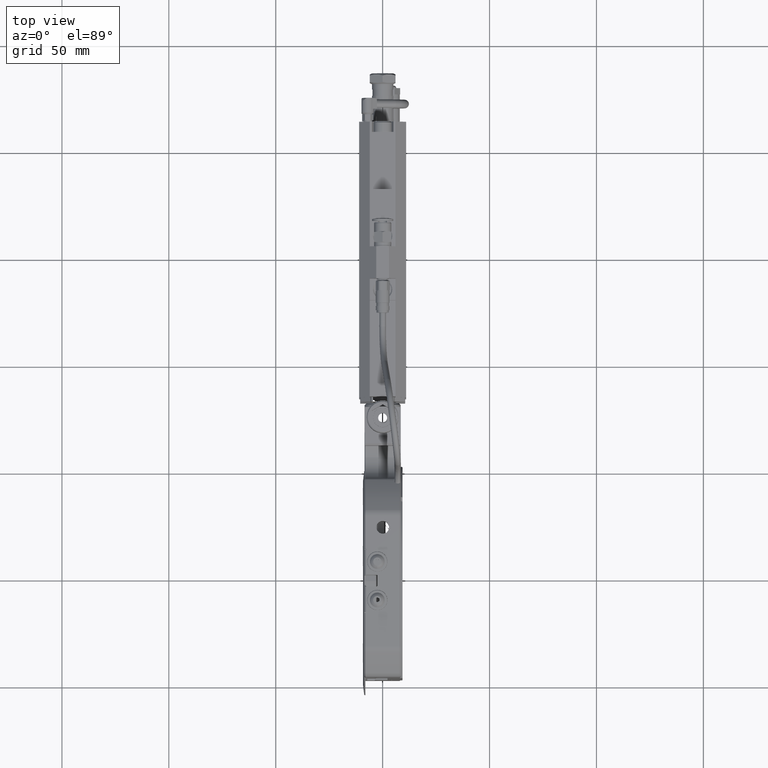
[diagram: clean part render]
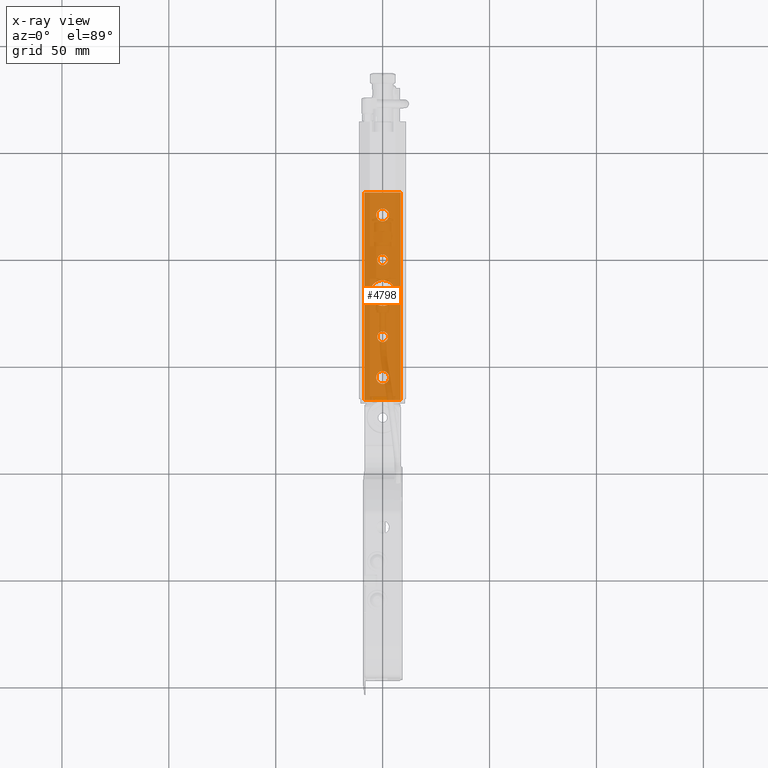
[diagram: x-ray — body ghosted, one internal face saturated and labeled with its STEP entity id]
A machine part, top view, then the same camera in x-ray: the body is ghosted and one INTERNAL B-rep face — a face not visible from any outside direction — is saturated and labeled: STEP entity #4798.
In plain terms, the highlighted planar face has unit normal (-0, -0, 1).
Its self-contained STEP definition (entity closure, byte-faithful):
#26 = DIRECTION ( 'NONE',  ( -1.000000000000000000, 0.000000000000000000, 0.000000000000000000 ) ) ;
#142 = VERTEX_POINT ( 'NONE', #15245 ) ;
#401 = CARTESIAN_POINT ( 'NONE',  ( 2.064920556876012684E-16, 5.887409446773196109, -1.994120026493726883 ) ) ;
#526 = EDGE_CURVE ( 'NONE', #47757, #7745, #19052, .T. ) ;
#538 = LINE ( 'NONE', #44138, #33334 ) ;
#671 = EDGE_CURVE ( 'NONE', #14198, #54429, #52836, .T. ) ;
#748 = EDGE_CURVE ( 'NONE', #44801, #30478, #40035, .T. ) ;
#1084 = CARTESIAN_POINT ( 'NONE',  ( -0.3346456692913382103, 3.308669289292881288, -1.994120026493726883 ) ) ;
#1554 = ORIENTED_EDGE ( 'NONE', *, *, #12971, .F. ) ;
#1956 = ORIENTED_EDGE ( 'NONE', *, *, #45304, .F. ) ;
#2722 = CARTESIAN_POINT ( 'NONE',  ( 0.2362204724409452672, 5.277173226300755360, -1.994120026493726883 ) ) ;
#2843 = FACE_BOUND ( 'NONE', #53444, .T. ) ;
#3637 = DIRECTION ( 'NONE',  ( -1.000000000000000000, 0.000000000000000000, 0.000000000000000000 ) ) ;
#4486 = EDGE_CURVE ( 'NONE', #30478, #44801, #6017, .T. ) ;
#4495 = DIRECTION ( 'NONE',  ( 1.802115992239523963E-16, 5.551115123125782702E-17, -1.000000000000000000 ) ) ;
#4798 = ADVANCED_FACE ( 'NONE', ( #7158, #24536, #41925, #2843, #8314, #18208 ), #39065, .F. ) ;
#5446 = AXIS2_PLACEMENT_3D ( 'NONE', #401, #49623, #6574 ) ;
#6017 = CIRCLE ( 'NONE', #16978, 0.1181102362204720091 ) ;
#6326 = ORIENTED_EDGE ( 'NONE', *, *, #48544, .F. ) ;
#6401 = CIRCLE ( 'NONE', #18261, 0.2362204724409449064 ) ;
#6574 = DIRECTION ( 'NONE',  ( -1.000000000000000000, 0.000000000000000000, 0.000000000000000000 ) ) ;
#7158 = FACE_BOUND ( 'NONE', #21363, .T. ) ;
#7745 = VERTEX_POINT ( 'NONE', #8824 ) ;
#8113 = VERTEX_POINT ( 'NONE', #2722 ) ;
#8314 = FACE_BOUND ( 'NONE', #13631, .T. ) ;
#8471 = CARTESIAN_POINT ( 'NONE',  ( -0.2362204724409445178, 5.277173226300755360, -1.994120026493726883 ) ) ;
#8817 = CARTESIAN_POINT ( 'NONE',  ( 1.729602628002910770E-16, 3.722055116064534541, -1.994120026493726883 ) ) ;
#8824 = CARTESIAN_POINT ( 'NONE',  ( 0.09842519685039399779, 5.887409446773196109, -1.994120026493726883 ) ) ;
#8873 = DIRECTION ( 'NONE',  ( -2.738967610578714190E-17, 1.000000000000000000, -2.775557561562891351E-17 ) ) ;
#9487 = CARTESIAN_POINT ( 'NONE',  ( 0.1181102362204721756, 3.722055116064534541, -1.994120026493726883 ) ) ;
#9615 = VERTEX_POINT ( 'NONE', #1084 ) ;
#10783 = CARTESIAN_POINT ( 'NONE',  ( 3.204394475668172458E-16, 6.714181100316503503, -1.994120026493726883 ) ) ;
#11037 = LINE ( 'NONE', #28126, #31730 ) ;
#11265 = VERTEX_POINT ( 'NONE', #44638 ) ;
#11425 = ORIENTED_EDGE ( 'NONE', *, *, #30439, .F. ) ;
#12653 = DIRECTION ( 'NONE',  ( 1.802115992239523963E-16, 5.551115123125782702E-17, -1.000000000000000000 ) ) ;
#12971 = EDGE_CURVE ( 'NONE', #54429, #14198, #23452, .T. ) ;
#13060 = LINE ( 'NONE', #35557, #51060 ) ;
#13147 = CARTESIAN_POINT ( 'NONE',  ( -0.4330708661417320693, 7.127566927088157200, -1.994120026493726883 ) ) ;
#13631 = EDGE_LOOP ( 'NONE', ( #25825, #41829 ) ) ;
#14198 = VERTEX_POINT ( 'NONE', #38078 ) ;
#15168 = DIRECTION ( 'NONE',  ( 1.802115992239523963E-16, 5.551115123125782702E-17, -1.000000000000000000 ) ) ;
#15245 = CARTESIAN_POINT ( 'NONE',  ( 0.1181102362204723283, 6.714181100316503503, -1.994120026493726883 ) ) ;
#15313 = DIRECTION ( 'NONE',  ( -1.000000000000000000, 5.477935221156371429E-17, -1.201972231527912082E-17 ) ) ;
#15637 = CARTESIAN_POINT ( 'NONE',  ( -0.09842519685039358146, 5.887409446773196109, -1.994120026493726883 ) ) ;
#15728 = CARTESIAN_POINT ( 'NONE',  ( 3.597986277975743569E-16, 5.277173226300755360, -1.994120026493726883 ) ) ;
#16229 = ORIENTED_EDGE ( 'NONE', *, *, #53464, .F. ) ;
#16978 = AXIS2_PLACEMENT_3D ( 'NONE', #8817, #4495, #38742 ) ;
#17683 = CIRCLE ( 'NONE', #53207, 0.1181102362204720091 ) ;
#17805 = AXIS2_PLACEMENT_3D ( 'NONE', #13147, #21361, #51887 ) ;
#18208 = FACE_OUTER_BOUND ( 'NONE', #18321, .T. ) ;
#18261 = AXIS2_PLACEMENT_3D ( 'NONE', #48769, #35146, #21448 ) ;
#18321 = EDGE_LOOP ( 'NONE', ( #16229, #47833, #30816, #20521 ) ) ;
#19052 = CIRCLE ( 'NONE', #5446, 0.09842519685039378963 ) ;
#19195 = VERTEX_POINT ( 'NONE', #8471 ) ;
#20521 = ORIENTED_EDGE ( 'NONE', *, *, #53643, .F. ) ;
#21116 = DIRECTION ( 'NONE',  ( -1.000000000000000000, 0.000000000000000000, 0.000000000000000000 ) ) ;
#21342 = VERTEX_POINT ( 'NONE', #25673 ) ;
#21361 = DIRECTION ( 'NONE',  ( -1.201972231527912390E-17, -5.551115123125783935E-17, 1.000000000000000000 ) ) ;
#21363 = EDGE_LOOP ( 'NONE', ( #11425, #1956 ) ) ;
#21390 = DIRECTION ( 'NONE',  ( -1.000000000000000000, 0.000000000000000000, 0.000000000000000000 ) ) ;
#21448 = DIRECTION ( 'NONE',  ( -1.000000000000000000, 0.000000000000000000, 0.000000000000000000 ) ) ;
#23373 = CIRCLE ( 'NONE', #25169, 0.1181102362204720091 ) ;
#23452 = CIRCLE ( 'NONE', #39862, 0.09842519685039378963 ) ;
#24124 = CARTESIAN_POINT ( 'NONE',  ( 0.09842519685039383126, 4.470086612127526671, -1.994120026493726883 ) ) ;
#24536 = FACE_BOUND ( 'NONE', #26054, .T. ) ;
#24984 = ORIENTED_EDGE ( 'NONE', *, *, #671, .F. ) ;
#25169 = AXIS2_PLACEMENT_3D ( 'NONE', #10783, #32173, #41251 ) ;
#25183 = CARTESIAN_POINT ( 'NONE',  ( -0.1181102362204716760, 6.714181100316503503, -1.994120026493726883 ) ) ;
#25309 = CARTESIAN_POINT ( 'NONE',  ( 3.386634127832462560E-17, 4.470086612127526671, -1.994120026493726883 ) ) ;
#25319 = VECTOR ( 'NONE', #48386, 39.37007874015748143 ) ;
#25673 = CARTESIAN_POINT ( 'NONE',  ( -0.3346456692913382658, 7.127566927088157200, -1.994120026493726883 ) ) ;
#25825 = ORIENTED_EDGE ( 'NONE', *, *, #748, .F. ) ;
#25863 = DIRECTION ( 'NONE',  ( 1.802115992239523963E-16, 5.551115123125782702E-17, -1.000000000000000000 ) ) ;
#26054 = EDGE_LOOP ( 'NONE', ( #47254, #32640 ) ) ;
#26577 = CARTESIAN_POINT ( 'NONE',  ( 0.3346456692913389319, 7.127566927088157200, -1.994120026493726883 ) ) ;
#27971 = CARTESIAN_POINT ( 'NONE',  ( 2.064920556876012684E-16, 5.887409446773196109, -1.994120026493726883 ) ) ;
#28126 = CARTESIAN_POINT ( 'NONE',  ( -0.4330708661417320693, 7.127566927088157200, -1.994120026493726883 ) ) ;
#30374 = ORIENTED_EDGE ( 'NONE', *, *, #46263, .F. ) ;
#30419 = VERTEX_POINT ( 'NONE', #26577 ) ;
#30439 = EDGE_CURVE ( 'NONE', #19195, #8113, #6401, .T. ) ;
#30478 = VERTEX_POINT ( 'NONE', #9487 ) ;
#30816 = ORIENTED_EDGE ( 'NONE', *, *, #42256, .T. ) ;
#31313 = LINE ( 'NONE', #44374, #25319 ) ;
#31730 = VECTOR ( 'NONE', #15313, 39.37007874015748143 ) ;
#32173 = DIRECTION ( 'NONE',  ( 1.802115992239523963E-16, 5.551115123125782702E-17, -1.000000000000000000 ) ) ;
#32556 = DIRECTION ( 'NONE',  ( -1.000000000000000000, 0.000000000000000000, 0.000000000000000000 ) ) ;
#32640 = ORIENTED_EDGE ( 'NONE', *, *, #44524, .F. ) ;
#33334 = VECTOR ( 'NONE', #8873, 39.37007874015748143 ) ;
#35126 = CARTESIAN_POINT ( 'NONE',  ( 3.204394475668172458E-16, 6.714181100316503503, -1.994120026493726883 ) ) ;
#35146 = DIRECTION ( 'NONE',  ( 1.802115992239523963E-16, 5.551115123125782702E-17, -1.000000000000000000 ) ) ;
#35287 = DIRECTION ( 'NONE',  ( -1.000000000000000000, 5.477935221156371429E-17, -1.201972231527912082E-17 ) ) ;
#35556 = AXIS2_PLACEMENT_3D ( 'NONE', #47900, #39096, #21390 ) ;
#35557 = CARTESIAN_POINT ( 'NONE',  ( -0.4330708661417320138, 3.308669289292881288, -1.994120026493726883 ) ) ;
#36638 = EDGE_LOOP ( 'NONE', ( #24984, #1554 ) ) ;
#38078 = CARTESIAN_POINT ( 'NONE',  ( -0.09842519685039376187, 4.470086612127526671, -1.994120026493726883 ) ) ;
#38259 = DIRECTION ( 'NONE',  ( 1.802115992239523963E-16, 5.551115123125782702E-17, -1.000000000000000000 ) ) ;
#38689 = EDGE_CURVE ( 'NONE', #11265, #9615, #13060, .T. ) ;
#38742 = DIRECTION ( 'NONE',  ( -1.000000000000000000, 0.000000000000000000, 0.000000000000000000 ) ) ;
#39065 = PLANE ( 'NONE',  #17805 ) ;
#39096 = DIRECTION ( 'NONE',  ( 1.802115992239523963E-16, 5.551115123125782702E-17, -1.000000000000000000 ) ) ;
#39862 = AXIS2_PLACEMENT_3D ( 'NONE', #25309, #25863, #3637 ) ;
#40035 = CIRCLE ( 'NONE', #35556, 0.1181102362204720091 ) ;
#40144 = AXIS2_PLACEMENT_3D ( 'NONE', #27971, #54467, #45035 ) ;
#40968 = AXIS2_PLACEMENT_3D ( 'NONE', #51337, #38259, #21116 ) ;
#41251 = DIRECTION ( 'NONE',  ( -1.000000000000000000, 0.000000000000000000, 0.000000000000000000 ) ) ;
#41829 = ORIENTED_EDGE ( 'NONE', *, *, #4486, .F. ) ;
#41925 = FACE_BOUND ( 'NONE', #36638, .T. ) ;
#42256 = EDGE_CURVE ( 'NONE', #9615, #21342, #538, .T. ) ;
#42882 = VERTEX_POINT ( 'NONE', #25183 ) ;
#44138 = CARTESIAN_POINT ( 'NONE',  ( -0.3346456692913382103, 3.308669289292881288, -1.994120026493726883 ) ) ;
#44374 = CARTESIAN_POINT ( 'NONE',  ( 0.3346456692913390429, 3.308669289292881288, -1.994120026493726883 ) ) ;
#44524 = EDGE_CURVE ( 'NONE', #7745, #47757, #47280, .T. ) ;
#44638 = CARTESIAN_POINT ( 'NONE',  ( 0.3346456692913390429, 3.308669289292881288, -1.994120026493726883 ) ) ;
#44801 = VERTEX_POINT ( 'NONE', #56097 ) ;
#45035 = DIRECTION ( 'NONE',  ( -1.000000000000000000, 0.000000000000000000, 0.000000000000000000 ) ) ;
#45304 = EDGE_CURVE ( 'NONE', #8113, #19195, #50131, .T. ) ;
#46263 = EDGE_CURVE ( 'NONE', #142, #42882, #17683, .T. ) ;
#47254 = ORIENTED_EDGE ( 'NONE', *, *, #526, .F. ) ;
#47280 = CIRCLE ( 'NONE', #40144, 0.09842519685039378963 ) ;
#47757 = VERTEX_POINT ( 'NONE', #15637 ) ;
#47833 = ORIENTED_EDGE ( 'NONE', *, *, #38689, .T. ) ;
#47900 = CARTESIAN_POINT ( 'NONE',  ( 1.729602628002910770E-16, 3.722055116064534541, -1.994120026493726883 ) ) ;
#48386 = DIRECTION ( 'NONE',  ( -2.738967610578714190E-17, 1.000000000000000000, -2.775557561562891351E-17 ) ) ;
#48544 = EDGE_CURVE ( 'NONE', #42882, #142, #23373, .T. ) ;
#48769 = CARTESIAN_POINT ( 'NONE',  ( 3.597986277975743569E-16, 5.277173226300755360, -1.994120026493726883 ) ) ;
#49623 = DIRECTION ( 'NONE',  ( 1.802115992239523963E-16, 5.551115123125782702E-17, -1.000000000000000000 ) ) ;
#50131 = CIRCLE ( 'NONE', #51044, 0.2362204724409449064 ) ;
#51044 = AXIS2_PLACEMENT_3D ( 'NONE', #15728, #15168, #32556 ) ;
#51060 = VECTOR ( 'NONE', #35287, 39.37007874015748143 ) ;
#51337 = CARTESIAN_POINT ( 'NONE',  ( 3.386634127832462560E-17, 4.470086612127526671, -1.994120026493726883 ) ) ;
#51887 = DIRECTION ( 'NONE',  ( 1.000000000000000000, -5.477935221156371429E-17, 1.201972231527912082E-17 ) ) ;
#52836 = CIRCLE ( 'NONE', #40968, 0.09842519685039378963 ) ;
#53207 = AXIS2_PLACEMENT_3D ( 'NONE', #35126, #12653, #26 ) ;
#53444 = EDGE_LOOP ( 'NONE', ( #6326, #30374 ) ) ;
#53464 = EDGE_CURVE ( 'NONE', #11265, #30419, #31313, .T. ) ;
#53643 = EDGE_CURVE ( 'NONE', #30419, #21342, #11037, .T. ) ;
#54429 = VERTEX_POINT ( 'NONE', #24124 ) ;
#54467 = DIRECTION ( 'NONE',  ( 1.802115992239523963E-16, 5.551115123125782702E-17, -1.000000000000000000 ) ) ;
#56097 = CARTESIAN_POINT ( 'NONE',  ( -0.1181102362204718287, 3.722055116064534541, -1.994120026493726883 ) ) ;